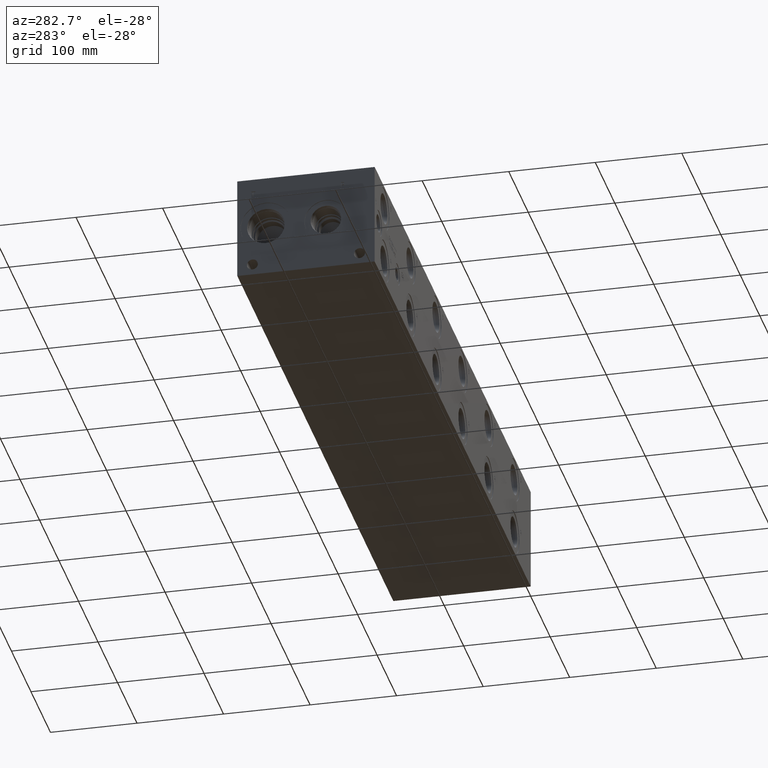
[diagram: clean part render]
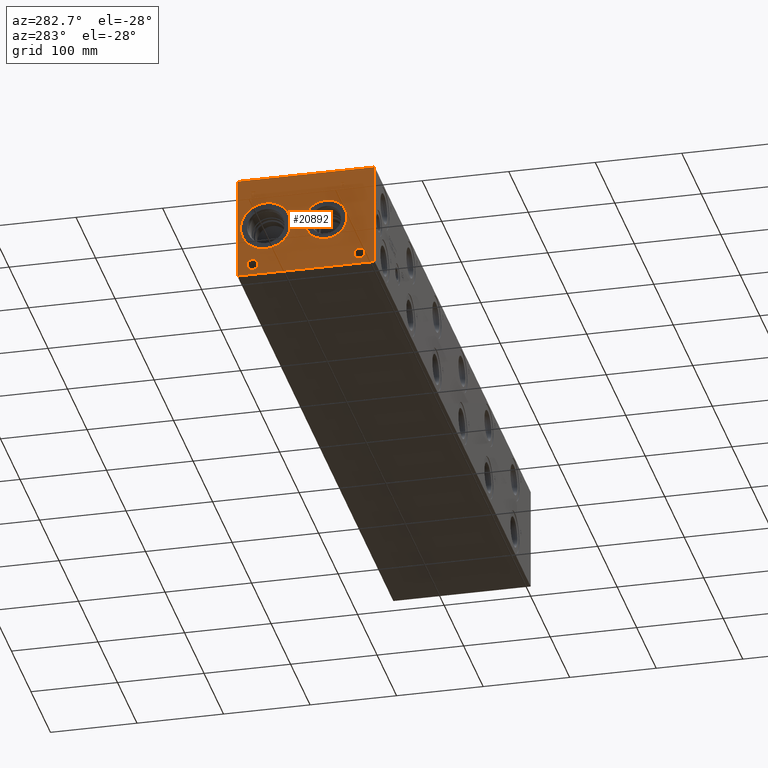
[diagram: same view with one face highlighted and labeled with its STEP entity id]
A machine part, auxiliary view. The second image highlights one B-rep face of the part: STEP entity #20892.
In plain terms, the highlighted planar face has unit normal (-1, 0, 0).
Its self-contained STEP definition (entity closure, byte-faithful):
#681=CIRCLE('',#21850,29.2862);
#682=CIRCLE('',#21851,29.2862);
#683=CIRCLE('',#21852,24.5618);
#684=CIRCLE('',#21853,24.5618);
#685=CIRCLE('',#21854,6.35);
#686=CIRCLE('',#21855,6.35);
#687=CIRCLE('',#21856,6.35);
#688=CIRCLE('',#21857,6.35);
#1909=B_SPLINE_CURVE_WITH_KNOTS('',2,(#34761,#34762,#34763,#34764),
 .UNSPECIFIED.,.F.,.F.,(3,1,3),(0.,1.,2.),.UNSPECIFIED.);
#1911=B_SPLINE_CURVE_WITH_KNOTS('',2,(#34782,#34783,#34784,#34785),
 .UNSPECIFIED.,.F.,.F.,(3,1,3),(0.,1.,2.),.UNSPECIFIED.);
#1913=B_SPLINE_CURVE_WITH_KNOTS('',2,(#34831,#34832,#34833,#34834),
 .UNSPECIFIED.,.F.,.F.,(3,1,3),(0.,1.,2.),.UNSPECIFIED.);
#1915=B_SPLINE_CURVE_WITH_KNOTS('',2,(#34849,#34850,#34851,#34852),
 .UNSPECIFIED.,.F.,.F.,(3,1,3),(0.,1.,2.),.UNSPECIFIED.);
#2001=FACE_BOUND('',#4024,.T.);
#2002=FACE_BOUND('',#4025,.T.);
#2003=FACE_BOUND('',#4026,.T.);
#2004=FACE_BOUND('',#4027,.T.);
#2005=FACE_BOUND('',#4028,.T.);
#2006=FACE_BOUND('',#4029,.T.);
#2803=FACE_OUTER_BOUND('',#4023,.T.);
#4023=EDGE_LOOP('',(#16633,#16634,#16635,#16636));
#4024=EDGE_LOOP('',(#16637,#16638));
#4025=EDGE_LOOP('',(#16639,#16640));
#4026=EDGE_LOOP('',(#16641,#16642));
#4027=EDGE_LOOP('',(#16643,#16644));
#4028=EDGE_LOOP('',(#16645,#16646,#16647,#16648,#16649,#16650,#16651,#16652));
#4029=EDGE_LOOP('',(#16653,#16654,#16655,#16656,#16657,#16658,#16659,#16660,
#16661));
#4713=LINE('',#28349,#6421);
#5938=LINE('',#34794,#7646);
#5941=LINE('',#34800,#7649);
#5944=LINE('',#34806,#7652);
#5947=LINE('',#34812,#7655);
#5950=LINE('',#34818,#7658);
#5954=LINE('',#34860,#7662);
#5955=LINE('',#34862,#7663);
#5956=LINE('',#34863,#7664);
#5957=LINE('',#34882,#7665);
#5958=LINE('',#34884,#7666);
#5959=LINE('',#34886,#7667);
#5960=LINE('',#34888,#7668);
#5961=LINE('',#34890,#7669);
#5962=LINE('',#34892,#7670);
#5963=LINE('',#34894,#7671);
#5964=LINE('',#34895,#7672);
#6421=VECTOR('',#23185,10.);
#7646=VECTOR('',#25272,10.);
#7649=VECTOR('',#25277,10.);
#7652=VECTOR('',#25282,10.);
#7655=VECTOR('',#25287,10.);
#7658=VECTOR('',#25292,10.);
#7662=VECTOR('',#25300,10.);
#7663=VECTOR('',#25301,10.);
#7664=VECTOR('',#25302,10.);
#7665=VECTOR('',#25319,10.);
#7666=VECTOR('',#25320,10.);
#7667=VECTOR('',#25321,10.);
#7668=VECTOR('',#25322,10.);
#7669=VECTOR('',#25323,10.);
#7670=VECTOR('',#25324,10.);
#7671=VECTOR('',#25325,10.);
#7672=VECTOR('',#25326,10.);
#8115=VERTEX_POINT('',#28342);
#8118=VERTEX_POINT('',#28347);
#9269=VERTEX_POINT('',#34759);
#9270=VERTEX_POINT('',#34760);
#9273=VERTEX_POINT('',#34781);
#9275=VERTEX_POINT('',#34793);
#9277=VERTEX_POINT('',#34799);
#9279=VERTEX_POINT('',#34805);
#9281=VERTEX_POINT('',#34811);
#9283=VERTEX_POINT('',#34817);
#9285=VERTEX_POINT('',#34830);
#9287=VERTEX_POINT('',#34859);
#9288=VERTEX_POINT('',#34861);
#9289=VERTEX_POINT('',#34864);
#9290=VERTEX_POINT('',#34865);
#9291=VERTEX_POINT('',#34868);
#9292=VERTEX_POINT('',#34869);
#9293=VERTEX_POINT('',#34872);
#9294=VERTEX_POINT('',#34873);
#9295=VERTEX_POINT('',#34876);
#9296=VERTEX_POINT('',#34877);
#9297=VERTEX_POINT('',#34880);
#9298=VERTEX_POINT('',#34881);
#9299=VERTEX_POINT('',#34883);
#9300=VERTEX_POINT('',#34885);
#9301=VERTEX_POINT('',#34887);
#9302=VERTEX_POINT('',#34889);
#9303=VERTEX_POINT('',#34891);
#9304=VERTEX_POINT('',#34893);
#10219=EDGE_CURVE('',#8115,#8118,#4713,.T.);
#11927=EDGE_CURVE('',#9269,#9270,#1909,.T.);
#11931=EDGE_CURVE('',#9273,#9269,#1911,.T.);
#11934=EDGE_CURVE('',#9275,#9273,#5938,.T.);
#11937=EDGE_CURVE('',#9277,#9275,#5941,.T.);
#11940=EDGE_CURVE('',#9279,#9277,#5944,.T.);
#11943=EDGE_CURVE('',#9281,#9279,#5947,.T.);
#11946=EDGE_CURVE('',#9283,#9281,#5950,.T.);
#11949=EDGE_CURVE('',#9285,#9283,#1913,.T.);
#11952=EDGE_CURVE('',#9270,#9285,#1915,.T.);
#11954=EDGE_CURVE('',#9287,#8115,#5954,.T.);
#11955=EDGE_CURVE('',#9288,#8118,#5955,.T.);
#11956=EDGE_CURVE('',#9287,#9288,#5956,.T.);
#11957=EDGE_CURVE('',#9289,#9290,#681,.T.);
#11958=EDGE_CURVE('',#9290,#9289,#682,.T.);
#11959=EDGE_CURVE('',#9291,#9292,#683,.T.);
#11960=EDGE_CURVE('',#9292,#9291,#684,.T.);
#11961=EDGE_CURVE('',#9293,#9294,#685,.T.);
#11962=EDGE_CURVE('',#9294,#9293,#686,.T.);
#11963=EDGE_CURVE('',#9295,#9296,#687,.T.);
#11964=EDGE_CURVE('',#9296,#9295,#688,.T.);
#11965=EDGE_CURVE('',#9297,#9298,#5957,.T.);
#11966=EDGE_CURVE('',#9298,#9299,#5958,.T.);
#11967=EDGE_CURVE('',#9299,#9300,#5959,.T.);
#11968=EDGE_CURVE('',#9300,#9301,#5960,.T.);
#11969=EDGE_CURVE('',#9301,#9302,#5961,.T.);
#11970=EDGE_CURVE('',#9302,#9303,#5962,.T.);
#11971=EDGE_CURVE('',#9303,#9304,#5963,.T.);
#11972=EDGE_CURVE('',#9304,#9297,#5964,.T.);
#16633=ORIENTED_EDGE('',*,*,#11954,.T.);
#16634=ORIENTED_EDGE('',*,*,#10219,.T.);
#16635=ORIENTED_EDGE('',*,*,#11955,.F.);
#16636=ORIENTED_EDGE('',*,*,#11956,.F.);
#16637=ORIENTED_EDGE('',*,*,#11957,.T.);
#16638=ORIENTED_EDGE('',*,*,#11958,.T.);
#16639=ORIENTED_EDGE('',*,*,#11959,.T.);
#16640=ORIENTED_EDGE('',*,*,#11960,.T.);
#16641=ORIENTED_EDGE('',*,*,#11961,.T.);
#16642=ORIENTED_EDGE('',*,*,#11962,.T.);
#16643=ORIENTED_EDGE('',*,*,#11963,.T.);
#16644=ORIENTED_EDGE('',*,*,#11964,.T.);
#16645=ORIENTED_EDGE('',*,*,#11965,.T.);
#16646=ORIENTED_EDGE('',*,*,#11966,.T.);
#16647=ORIENTED_EDGE('',*,*,#11967,.T.);
#16648=ORIENTED_EDGE('',*,*,#11968,.T.);
#16649=ORIENTED_EDGE('',*,*,#11969,.T.);
#16650=ORIENTED_EDGE('',*,*,#11970,.T.);
#16651=ORIENTED_EDGE('',*,*,#11971,.T.);
#16652=ORIENTED_EDGE('',*,*,#11972,.T.);
#16653=ORIENTED_EDGE('',*,*,#11927,.T.);
#16654=ORIENTED_EDGE('',*,*,#11952,.T.);
#16655=ORIENTED_EDGE('',*,*,#11949,.T.);
#16656=ORIENTED_EDGE('',*,*,#11946,.T.);
#16657=ORIENTED_EDGE('',*,*,#11943,.T.);
#16658=ORIENTED_EDGE('',*,*,#11940,.T.);
#16659=ORIENTED_EDGE('',*,*,#11937,.T.);
#16660=ORIENTED_EDGE('',*,*,#11934,.T.);
#16661=ORIENTED_EDGE('',*,*,#11931,.T.);
#19536=PLANE('',#21849);
#20892=ADVANCED_FACE('',(#2803,#2001,#2002,#2003,#2004,#2005,#2006),#19536,
 .T.);
#21849=AXIS2_PLACEMENT_3D('',#34858,#25298,#25299);
#21850=AXIS2_PLACEMENT_3D('',#34866,#25303,#25304);
#21851=AXIS2_PLACEMENT_3D('',#34867,#25305,#25306);
#21852=AXIS2_PLACEMENT_3D('',#34870,#25307,#25308);
#21853=AXIS2_PLACEMENT_3D('',#34871,#25309,#25310);
#21854=AXIS2_PLACEMENT_3D('',#34874,#25311,#25312);
#21855=AXIS2_PLACEMENT_3D('',#34875,#25313,#25314);
#21856=AXIS2_PLACEMENT_3D('',#34878,#25315,#25316);
#21857=AXIS2_PLACEMENT_3D('',#34879,#25317,#25318);
#23185=DIRECTION('',(0.,0.,1.));
#25272=DIRECTION('',(0.,-1.,0.));
#25277=DIRECTION('',(0.,-2.79741238752512E-15,1.));
#25282=DIRECTION('',(0.,1.,0.));
#25287=DIRECTION('',(0.,3.75218139805001E-15,-1.));
#25292=DIRECTION('',(0.,1.,0.));
#25298=DIRECTION('center_axis',(-1.,0.,0.));
#25299=DIRECTION('ref_axis',(0.,-1.,0.));
#25300=DIRECTION('',(0.,-1.,0.));
#25301=DIRECTION('',(0.,-1.,0.));
#25302=DIRECTION('',(0.,0.,1.));
#25303=DIRECTION('center_axis',(1.,0.,0.));
#25304=DIRECTION('ref_axis',(0.,0.,1.));
#25305=DIRECTION('center_axis',(1.,0.,0.));
#25306=DIRECTION('ref_axis',(0.,0.,1.));
#25307=DIRECTION('center_axis',(1.,0.,0.));
#25308=DIRECTION('ref_axis',(0.,0.,1.));
#25309=DIRECTION('center_axis',(1.,0.,0.));
#25310=DIRECTION('ref_axis',(0.,0.,1.));
#25311=DIRECTION('center_axis',(1.,0.,0.));
#25312=DIRECTION('ref_axis',(0.,1.,0.));
#25313=DIRECTION('center_axis',(1.,0.,0.));
#25314=DIRECTION('ref_axis',(0.,1.,0.));
#25315=DIRECTION('center_axis',(1.,0.,0.));
#25316=DIRECTION('ref_axis',(0.,1.,0.));
#25317=DIRECTION('center_axis',(1.,0.,0.));
#25318=DIRECTION('ref_axis',(0.,1.,0.));
#25319=DIRECTION('',(0.,1.,0.));
#25320=DIRECTION('',(0.,-3.17280044688051E-15,1.));
#25321=DIRECTION('',(0.,1.,0.));
#25322=DIRECTION('',(0.,0.,1.));
#25323=DIRECTION('',(0.,-1.,0.));
#25324=DIRECTION('',(0.,0.,-1.));
#25325=DIRECTION('',(0.,1.,0.));
#25326=DIRECTION('',(0.,3.17280044688052E-15,-1.));
#28342=CARTESIAN_POINT('',(0.,0.,0.));
#28347=CARTESIAN_POINT('',(0.,0.,120.65));
#28349=CARTESIAN_POINT('',(0.,0.,0.));
#34759=CARTESIAN_POINT('',(0.,35.5710327976406,105.140768143971));
#34760=CARTESIAN_POINT('',(0.,34.814590345468,103.622737372604));
#34761=CARTESIAN_POINT('Ctrl Pts',(0.,35.5710327976406,105.140768143971));
#34762=CARTESIAN_POINT('Ctrl Pts',(0.,35.2159679731514,104.898912393956));
#34763=CARTESIAN_POINT('Ctrl Pts',(0.,34.814590345468,104.152761675827));
#34764=CARTESIAN_POINT('Ctrl Pts',(0.,34.814590345468,103.622737372604));
#34781=CARTESIAN_POINT('',(0.,37.2331478456117,105.536999904633));
#34782=CARTESIAN_POINT('Ctrl Pts',(0.,37.2331478456117,105.536999904633));
#34783=CARTESIAN_POINT('Ctrl Pts',(0.,36.6671024732376,105.536999904633));
#34784=CARTESIAN_POINT('Ctrl Pts',(0.,35.874638951914,105.351748691856));
#34785=CARTESIAN_POINT('Ctrl Pts',(0.,35.5710327976406,105.140768143971));
#34793=CARTESIAN_POINT('',(0.,38.8283666223022,105.536999904633));
#34794=CARTESIAN_POINT('',(0.,98.7891833111511,105.536999904633));
#34799=CARTESIAN_POINT('',(0.,38.8283666223022,99.187));
#34800=CARTESIAN_POINT('',(0.,38.8283666223024,49.5934999999998));
#34805=CARTESIAN_POINT('',(0.,37.9844444307627,99.187));
#34806=CARTESIAN_POINT('',(0.,98.3672222153814,99.187));
#34811=CARTESIAN_POINT('',(0.,37.9844444307627,101.554098829928));
#34812=CARTESIAN_POINT('',(0.,37.9844444307629,50.7770494149637));
#34817=CARTESIAN_POINT('',(0.,37.2691689147628,101.554098829928));
#34818=CARTESIAN_POINT('',(0.,98.0095844573814,101.554098829928));
#34830=CARTESIAN_POINT('',(0.,35.3703439837989,102.21276980869));
#34831=CARTESIAN_POINT('Ctrl Pts',(0.,35.3703439837989,102.21276980869));
#34832=CARTESIAN_POINT('Ctrl Pts',(0.,35.6996794731802,101.888580186331));
#34833=CARTESIAN_POINT('Ctrl Pts',(0.,36.5899144679139,101.554098829928));
#34834=CARTESIAN_POINT('Ctrl Pts',(0.,37.2691689147628,101.554098829928));
#34849=CARTESIAN_POINT('Ctrl Pts',(0.,34.814590345468,103.622737372604));
#34850=CARTESIAN_POINT('Ctrl Pts',(0.,34.814590345468,103.211068010877));
#34851=CARTESIAN_POINT('Ctrl Pts',(0.,35.1079047656982,102.47006315977));
#34852=CARTESIAN_POINT('Ctrl Pts',(0.,35.3703439837989,102.21276980869));
#34858=CARTESIAN_POINT('Origin',(0.,158.75,0.));
#34859=CARTESIAN_POINT('',(0.,158.75,0.));
#34860=CARTESIAN_POINT('',(0.,158.75,0.));
#34861=CARTESIAN_POINT('',(0.,158.75,120.65));
#34862=CARTESIAN_POINT('',(0.,158.75,120.65));
#34863=CARTESIAN_POINT('',(0.,158.75,0.));
#34864=CARTESIAN_POINT('',(0.,125.8316,89.6112));
#34865=CARTESIAN_POINT('',(0.,125.8316,31.0388));
#34866=CARTESIAN_POINT('Origin',(0.,125.8316,60.325));
#34867=CARTESIAN_POINT('Origin',(0.,125.8316,60.325));
#34868=CARTESIAN_POINT('',(0.,56.4896,84.8868));
#34869=CARTESIAN_POINT('',(6.93889390390723E-17,56.4896,35.7632));
#34870=CARTESIAN_POINT('Origin',(0.,56.4896,60.325));
#34871=CARTESIAN_POINT('Origin',(0.,56.4896,60.325));
#34872=CARTESIAN_POINT('',(0.,147.6248,12.7));
#34873=CARTESIAN_POINT('',(0.,134.9248,12.7));
#34874=CARTESIAN_POINT('Origin',(0.,141.2748,12.7));
#34875=CARTESIAN_POINT('Origin',(0.,141.2748,12.7));
#34876=CARTESIAN_POINT('',(0.,23.7998,12.7));
#34877=CARTESIAN_POINT('',(0.,11.0998,12.7));
#34878=CARTESIAN_POINT('Origin',(0.,17.4498,12.7));
#34879=CARTESIAN_POINT('Origin',(0.,17.4498,12.7));
#34880=CARTESIAN_POINT('',(0.,139.880434728547,99.187));
#34881=CARTESIAN_POINT('',(0.,140.724356920087,99.187));
#34882=CARTESIAN_POINT('',(0.,149.315217364274,99.187));
#34883=CARTESIAN_POINT('',(0.,140.724356920087,104.785703319482));
#34884=CARTESIAN_POINT('',(0.,140.724356920087,49.5935));
#34885=CARTESIAN_POINT('',(0.,142.854745867022,104.785703319482));
#34886=CARTESIAN_POINT('',(0.,149.737178460043,104.785703319482));
#34887=CARTESIAN_POINT('',(0.,142.854745867022,105.536999904633));
#34888=CARTESIAN_POINT('',(0.,142.854745867022,52.3928516597408));
#34889=CARTESIAN_POINT('',(0.,137.750045781612,105.536999904633));
#34890=CARTESIAN_POINT('',(0.,150.802372933511,105.536999904633));
#34891=CARTESIAN_POINT('',(0.,137.750045781612,104.785703319482));
#34892=CARTESIAN_POINT('',(0.,137.750045781612,52.7684999523163));
#34893=CARTESIAN_POINT('',(0.,139.880434728547,104.785703319482));
#34894=CARTESIAN_POINT('',(0.,148.250022890806,104.785703319482));
#34895=CARTESIAN_POINT('',(0.,139.880434728547,52.3928516597407));